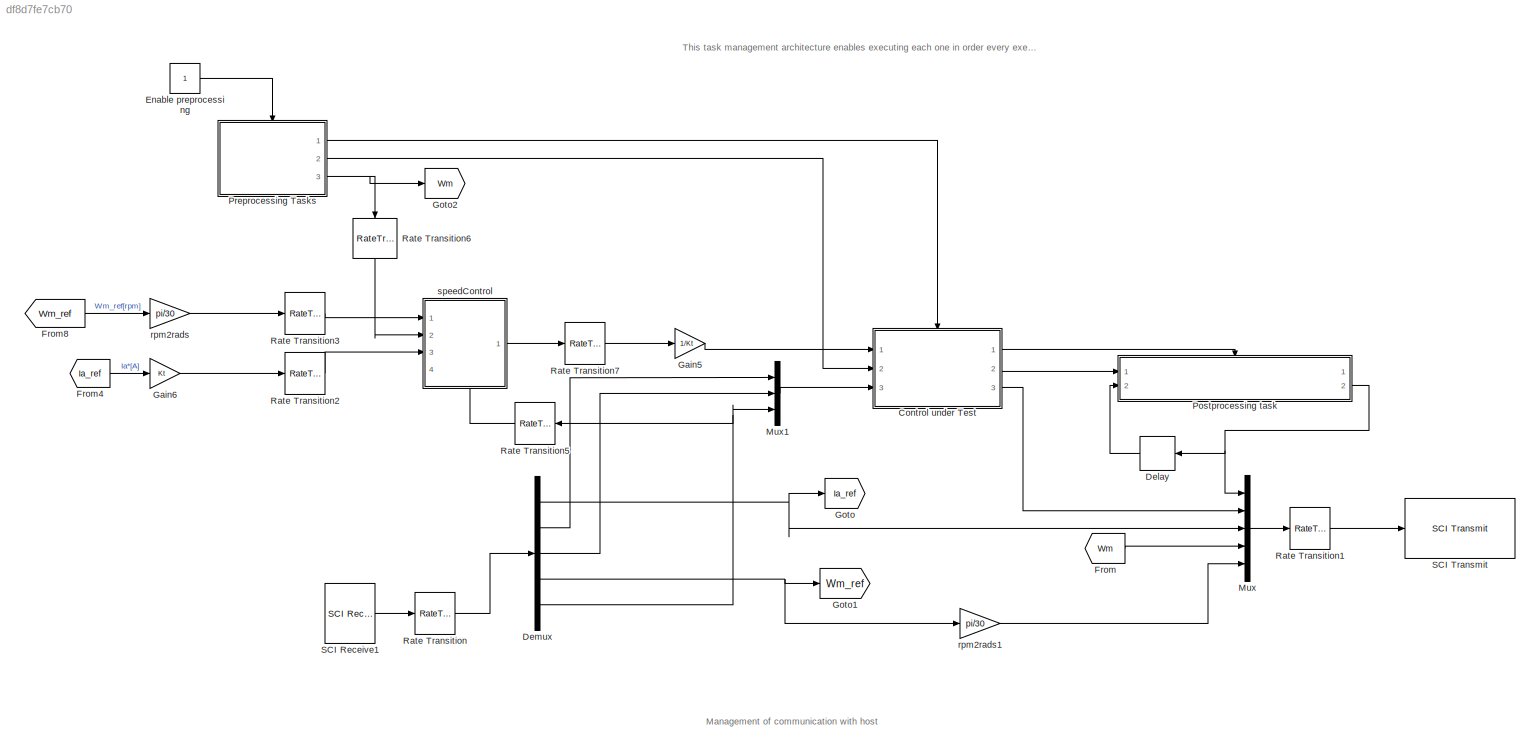
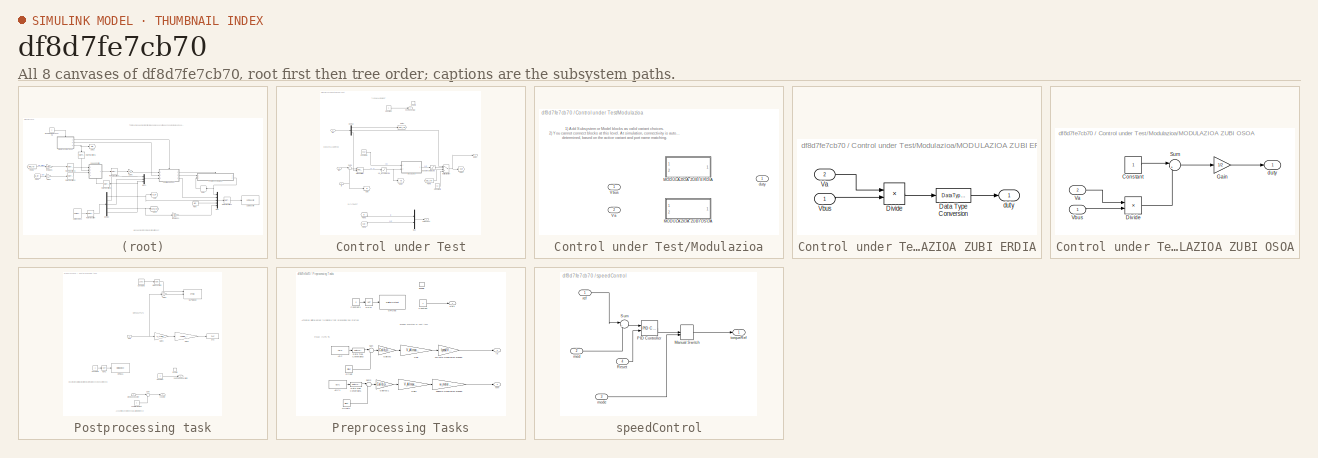
[diagram: thumbnail index - all 8 canvases of the model, root first then tree order]
MODEL slx_df8d7fe7cb70
KIND model
CONFIG AbsTol = auto
CONFIG EnableMultiTasking = on
CONFIG FixedStep = Ts
CONFIG MaxStep = auto
CONFIG MinStep = auto
CONFIG RelTol = 1e-3
CONFIG SampleTimeConstraint = Unconstrained
CONFIG SolverName = FixedStepAuto
CONFIG StartTime = 0.0
CONFIG StopTime = Inf
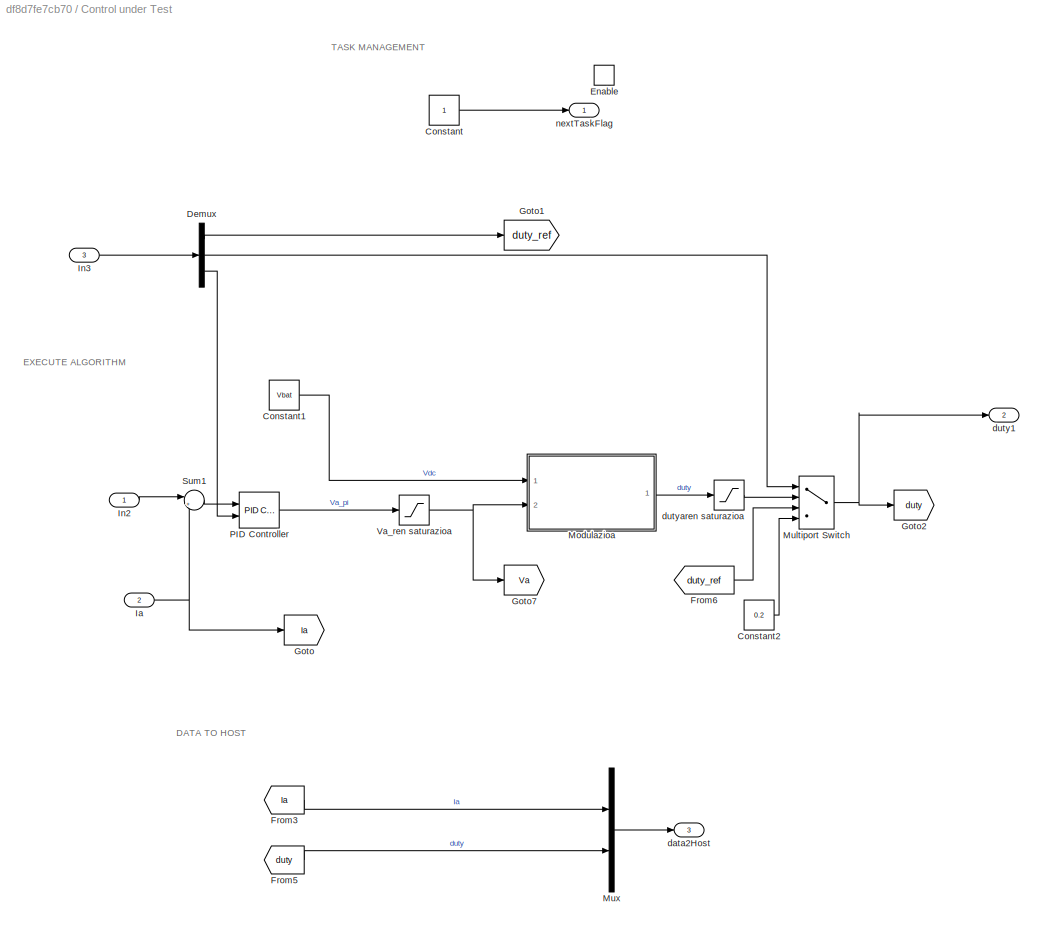
BLOCK [SubSystem] Control under Test
  Ports = [3, 3, 1]
  RequestExecContextInheritance = off
  TreatAsAtomicUnit = on
BLOCK [Constant] Control under Test/Constant
BLOCK [Constant] Control under Test/Constant1
  OutDataTypeStr = single
  Value = Vbat
BLOCK [Constant] Control under Test/Constant2
  OutDataTypeStr = single
  SampleTime = 200e-6
  Value = 0.2
BLOCK [Demux] Control under Test/Demux
  Outputs = 3
  Ports = [1, 3]
BLOCK [EnablePort] Control under Test/Enable
  Ports = []
BLOCK [From] Control under Test/From3
  GotoTag = Ia
BLOCK [From] Control under Test/From5
  GotoTag = duty
BLOCK [From] Control under Test/From6
  GotoTag = duty_ref
BLOCK [Goto] Control under Test/Goto
  GotoTag = Ia
BLOCK [Goto] Control under Test/Goto1
  GotoTag = duty_ref
BLOCK [Goto] Control under Test/Goto2
  GotoTag = duty
BLOCK [Goto] Control under Test/Goto7
  GotoTag = Va
BLOCK [Inport] Control under Test/Ia
  Port = 2
BLOCK [Inport] Control under Test/In2
BLOCK [Inport] Control under Test/In3
  Port = 3
BLOCK [SubSystem] Control under Test/Modulazioa
  LabelModeActiveChoice = MODULAZIOA_ZUBI_ERDIA
  Ports = [2, 1]
  RequestExecContextInheritance = off
  Variant = on
  VariantControlMode = label
BLOCK [SubSystem] Control under Test/Modulazioa/MODULAZIOA ZUBI ERDIA
  Ports = [2, 1]
  RequestExecContextInheritance = off
  VariantControl = MODULAZIOA_ZUBI_ERDIA
BLOCK [DataTypeConversion] Control under Test/Modulazioa/MODULAZIOA ZUBI ERDIA/Data Type Conversion
  OutDataTypeStr = single
  RndMeth = Floor
  SaturateOnIntegerOverflow = off
BLOCK [Product] Control under Test/Modulazioa/MODULAZIOA ZUBI ERDIA/Divide
  Inputs = */
  Ports = [2, 1]
BLOCK [Inport] Control under Test/Modulazioa/MODULAZIOA ZUBI ERDIA/Va
  Port = 2
BLOCK [Inport] Control under Test/Modulazioa/MODULAZIOA ZUBI ERDIA/Vbus
BLOCK [Outport] Control under Test/Modulazioa/MODULAZIOA ZUBI ERDIA/duty 
BLOCK [SubSystem] Control under Test/Modulazioa/MODULAZIOA ZUBI OSOA
  Ports = [2, 1]
  RequestExecContextInheritance = off
  VariantControl = MODULAZIOA_ZUBI_OSOA
BLOCK [Constant] Control under Test/Modulazioa/MODULAZIOA ZUBI OSOA/Constant
BLOCK [Product] Control under Test/Modulazioa/MODULAZIOA ZUBI OSOA/Divide
  Inputs = */
  Ports = [2, 1]
BLOCK [Gain] Control under Test/Modulazioa/MODULAZIOA ZUBI OSOA/Gain
  Gain = 1/2
BLOCK [Sum] Control under Test/Modulazioa/MODULAZIOA ZUBI OSOA/Sum
  Inputs = |++
  Ports = [2, 1]
BLOCK [Inport] Control under Test/Modulazioa/MODULAZIOA ZUBI OSOA/Va
  Port = 2
BLOCK [Inport] Control under Test/Modulazioa/MODULAZIOA ZUBI OSOA/Vbus
BLOCK [Outport] Control under Test/Modulazioa/MODULAZIOA ZUBI OSOA/duty 
BLOCK [Inport] Control under Test/Modulazioa/Va
  Port = 2
BLOCK [Inport] Control under Test/Modulazioa/Vbus
BLOCK [Outport] Control under Test/Modulazioa/duty 
BLOCK [MultiPortSwitch] Control under Test/Multiport Switch
  InputSameDT = off
  Ports = [4, 1]
  SaturateOnIntegerOverflow = off
BLOCK [Mux] Control under Test/Mux
  DisplayOption = bar
  Inputs = 2
  Ports = [2, 1]
BLOCK [Reference] Control under Test/PID Controller  REF=slpidlib/PID Controller
  Ports = [2, 1]
  SourceBlock = slpidlib/PID Controller
  SourceProductBaseCode = SL
  SourceType = PID 1dof
BLOCK [Sum] Control under Test/Sum1
  Inputs = |+-
  Ports = [2, 1]
BLOCK [Saturate] Control under Test/Va_ren saturazioa
  LowerLimit = 0
  UpperLimit = Vnom
BLOCK [Outport] Control under Test/data2Host
  Port = 3
BLOCK [Outport] Control under Test/duty1
  Port = 2
BLOCK [Saturate] Control under Test/dutyaren saturazioa
  LowerLimit = 0
  UpperLimit = 1
BLOCK [Outport] Control under Test/nextTaskFlag
BLOCK [Delay] Delay
  DelayLength = 1
  InputPortMap = u0
  NameLocation = top
  Ports = [1, 1]
BLOCK [Demux] Demux
  Outputs = 5
  Ports = [1, 5]
BLOCK [Constant] Enable preprocessing
BLOCK [From] From
  GotoTag = Wm
BLOCK [From] From4
  GotoTag = Ia_ref
BLOCK [From] From8
  GotoTag = Wm_ref
BLOCK [Gain] Gain5
  Gain = 1/Kt
BLOCK [Gain] Gain6
  Gain = Kt
BLOCK [Goto] Goto
  GotoTag = Ia_ref
BLOCK [Goto] Goto1
  GotoTag = Wm_ref
BLOCK [Goto] Goto2
  GotoTag = Wm
BLOCK [Mux] Mux
  DisplayOption = bar
  Inputs = 5
  Ports = [5, 1]
BLOCK [Mux] Mux1
  DisplayOption = bar
  Inputs = 3
  Ports = [3, 1]
BLOCK [SubSystem] Postprocessing task
  Ports = [2, 2, 1]
  RequestExecContextInheritance = off
  TreatAsAtomicUnit = on
BLOCK [Constant] Postprocessing task/Constant
BLOCK [Constant] Postprocessing task/Constant2
BLOCK [Constant] Postprocessing task/Constant3
  OutDataTypeStr = single
  SampleTime = 200e-6
  Value = 10e3
BLOCK [Reference] Postprocessing task/DAC  REF=c2837xDlib/DAC
  Ports = [1]
  SourceBlock = c2837xDlib/DAC
  SourceProductBaseCode = TIC2000
  SourceType = codertarget.tic2000.blocks.DACWrite
BLOCK [EnablePort] Postprocessing task/Enable
  Ports = []
BLOCK [Reference] Postprocessing task/GPIO66 1  REF=c2837xDlib/Digital Output
  Ports = [1]
  SourceBlock = c2837xDlib/Digital Output
  SourceProductBaseCode = TIC2000
  SourceType = F2837x GPIO Digital Output
  UserDataPersistent = on
BLOCK [Gain] Postprocessing task/Gain1
  Gain = 100
BLOCK [Gain] Postprocessing task/Gain2
  Gain = Analog_max/V_AImax
BLOCK [Gain] Postprocessing task/Gain3
  Gain = V_AImax
BLOCK [Math] Postprocessing task/Math Function
  Operator = reciprocal
  Ports = [1, 1]
BLOCK [Logic] Postprocessing task/NOT2
  AllPortsSameDT = off
  IconShape = distinctive
  Operator = NOT
  OutDataTypeStr = boolean
  Ports = [1, 1]
BLOCK [Sum] Postprocessing task/Sum
  Inputs = |++
  Ports = [2, 1]
BLOCK [Reference] Postprocessing task/WA PWM duty  REF=c2802xlib/ePWM
  Ports = [3]
  SourceBlock = c2802xlib/ePWM
  SourceProductBaseCode = TIC2000
  SourceType = ePWM Type 1-4
  UserDataPersistent = on
BLOCK [Outport] Postprocessing task/counter
  Port = 2
BLOCK [Constant] Postprocessing task/couterIncrement
  OutDataTypeStr = single
BLOCK [Inport] Postprocessing task/duty
BLOCK [Outport] Postprocessing task/nextTaskExecution
BLOCK [Inport] Postprocessing task/previousCounter
  Port = 2
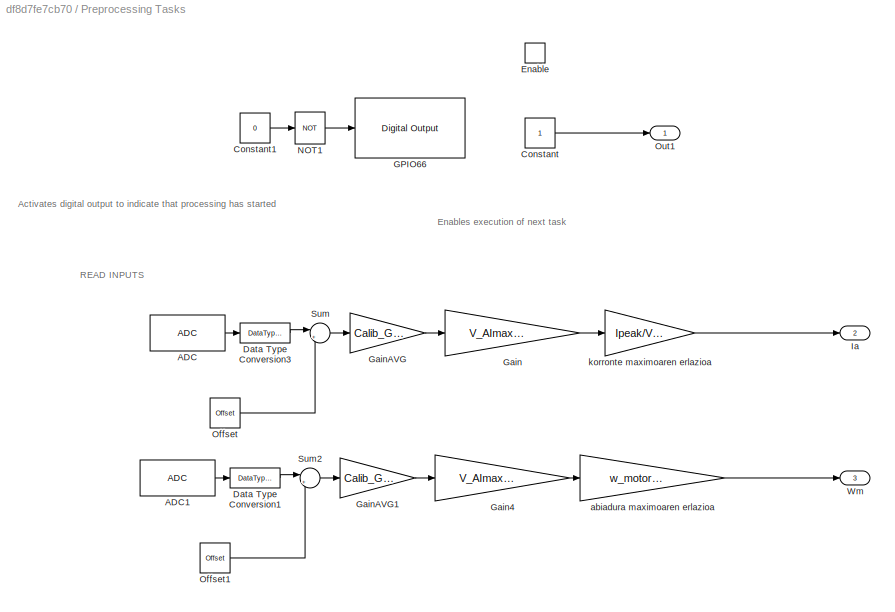
BLOCK [SubSystem] Preprocessing Tasks
  Ports = [0, 3, 1]
  RequestExecContextInheritance = off
  TreatAsAtomicUnit = on
BLOCK [Reference] Preprocessing Tasks/ADC  REF=c2802xlib/ADC
  Ports = [0, 1]
  SourceBlock = c2802xlib/ADC
  SourceProductBaseCode = TIC2000
  SourceType = ADC Type 3-5
  UserDataPersistent = on
BLOCK [Reference] Preprocessing Tasks/ADC1  REF=c2802xlib/ADC
  Ports = [0, 1]
  SourceBlock = c2802xlib/ADC
  SourceProductBaseCode = TIC2000
  SourceType = ADC Type 3-5
  UserDataPersistent = on
BLOCK [Constant] Preprocessing Tasks/Constant
BLOCK [Constant] Preprocessing Tasks/Constant1
  Value = 0
BLOCK [DataTypeConversion] Preprocessing Tasks/Data Type Conversion1
  OutDataTypeStr = single
  RndMeth = Floor
  SaturateOnIntegerOverflow = off
BLOCK [DataTypeConversion] Preprocessing Tasks/Data Type Conversion3
  OutDataTypeStr = single
  RndMeth = Floor
  SaturateOnIntegerOverflow = off
BLOCK [EnablePort] Preprocessing Tasks/Enable
  Ports = []
BLOCK [Reference] Preprocessing Tasks/GPIO66   REF=c2837xDlib/Digital Output
  Ports = [1]
  SourceBlock = c2837xDlib/Digital Output
  SourceProductBaseCode = TIC2000
  SourceType = F2837x GPIO Digital Output
  UserDataPersistent = on
BLOCK [Gain] Preprocessing Tasks/Gain
  Gain = V_AImax/Analog_max
BLOCK [Gain] Preprocessing Tasks/Gain4
  Gain = V_AImax/Analog_max
BLOCK [Gain] Preprocessing Tasks/GainAVG
  Gain = Calib_Gain
  OutDataTypeStr = single
BLOCK [Gain] Preprocessing Tasks/GainAVG1
  Gain = Calib_Gain
  OutDataTypeStr = single
BLOCK [Outport] Preprocessing Tasks/Ia
  Port = 2
BLOCK [Logic] Preprocessing Tasks/NOT1
  AllPortsSameDT = off
  IconShape = distinctive
  Operator = NOT
  OutDataTypeStr = boolean
  Ports = [1, 1]
BLOCK [Constant] Preprocessing Tasks/Offset
  OutDataTypeStr = single
  Value = Offset
BLOCK [Constant] Preprocessing Tasks/Offset1
  OutDataTypeStr = single
  Value = Offset
BLOCK [Outport] Preprocessing Tasks/Out1
BLOCK [Sum] Preprocessing Tasks/Sum
  Inputs = |+-
  Ports = [2, 1]
BLOCK [Sum] Preprocessing Tasks/Sum2
  Inputs = |+-
  Ports = [2, 1]
BLOCK [Outport] Preprocessing Tasks/Wm
  Port = 3
BLOCK [Gain] Preprocessing Tasks/abiadura maximoaren erlazioa
  Gain = w_motor_max/V_AImax
  NameLocation = top
BLOCK [Gain] Preprocessing Tasks/korronte maximoaren erlazioa
  Gain = Ipeak/V_AImax
  NameLocation = top
BLOCK [RateTransition] Rate Transition
  OutPortSampleTime = Ts
BLOCK [RateTransition] Rate Transition1
  OutPortSampleTime = 1e-3
BLOCK [RateTransition] Rate Transition2
  OutPortSampleTime = Ts*10
BLOCK [RateTransition] Rate Transition3
  OutPortSampleTime = Ts*10
BLOCK [RateTransition] Rate Transition5
  NameLocation = top
  OutPortSampleTime = Ts*10
BLOCK [RateTransition] Rate Transition6
  NameLocation = left
  OutPortSampleTime = Ts*10
BLOCK [RateTransition] Rate Transition7
  OutPortSampleTime = Ts
BLOCK [Reference] SCI Receive1  REF=c280xlib/SCI Receive
  Ports = [0, 1]
  SourceBlock = c280xlib/SCI Receive
  SourceProductBaseCode = TIC2000
  SourceType = C28x SCI Receive
BLOCK [Reference] SCI Transmit  REF=c280xlib/SCI Transmit
  Ports = [1]
  SourceBlock = c280xlib/SCI Transmit
  SourceProductBaseCode = TIC2000
  SourceType = C28x SCI Transmit
BLOCK [Gain] rpm2rads
  Gain = pi/30
BLOCK [Gain] rpm2rads1
  Gain = pi/30
BLOCK [SubSystem] speedControl
  PortSchema = {"entries":[{"content":{"sides":[{"content":{"connectorIds":["In1","In2","In3"]},"type":"ConnectorPlacement.EquallySpacedRectSide","uuid":"717e16ee-b0d7-408d-ae9c-739de9edb354"},{"content":{"connectorIds":["Out1"],"side":"RIGHT"},"type":"ConnectorPlacement.EquallySpacedRectSide","uuid":"4d51b045-d1f8-4970-b864-a989cb97e64e"},{"content":{"connectorIds":[],"side":"TOP"},"type":"ConnectorPlacement.Eq...<+401ch>
  Ports = [4, 1]
  RequestExecContextInheritance = off
BLOCK [ManualSwitch] speedControl/Manual Switch
BLOCK [Reference] speedControl/PID Controller  REF=slpidlib/PID Controller
  Ports = [2, 1]
  SourceBlock = slpidlib/PID Controller
  SourceProductBaseCode = SL
  SourceType = PID 1dof
BLOCK [Inport] speedControl/Reset
  Port = 4
BLOCK [Sum] speedControl/Sum
  Inputs = |+-
  Ports = [2, 1]
BLOCK [Inport] speedControl/med
  Port = 2
BLOCK [Inport] speedControl/mode
  Port = 3
BLOCK [Inport] speedControl/ref
BLOCK [Outport] speedControl/torqueRef
ANNOTATION (root): Management of communication with host
ANNOTATION (root): This task management architecture enables executing each one in order every execution step defined in the model base simulation step.
ANNOTATION Control under Test: DATA TO HOST
ANNOTATION Control under Test: EXECUTE ALGORITHM
ANNOTATION Control under Test: TASK MANAGEMENT
ANNOTATION Control under Test/Modulazioa: 1) Add Subsystem or Model blocks as valid variant choices. 2) You cannot connect blocks at this level. At simulation, connectivity is automatically determined, based on the active variant and port name matching.
ANNOTATION Postprocessing task: A counter is send to the host as a time reference
ANNOTATION Postprocessing task: Deactivates digital output to indicate that processing has finished
ANNOTATION Postprocessing task: WRITE OUTPUTS
ANNOTATION Preprocessing Tasks: Activates digital output to indicate that processing has started
ANNOTATION Preprocessing Tasks: Enables execution of next task
ANNOTATION Preprocessing Tasks: READ INPUTS
LINE Control under Test/Constant1:1 -> Control under Test/Modulazioa:1
LINE Control under Test/Constant2:1 -> Control under Test/Multiport Switch:4
LINE Control under Test/Constant:1 -> Control under Test/nextTaskFlag:1
LINE Control under Test/Demux:1 -> Control under Test/Goto1:1
LINE Control under Test/Demux:2 -> Control under Test/Multiport Switch:1
LINE Control under Test/Demux:3 -> Control under Test/PID Controller:2
LINE Control under Test/From3:1 -> Control under Test/Mux:1
LINE Control under Test/From5:1 -> Control under Test/Mux:2
LINE Control under Test/From6:1 -> Control under Test/Multiport Switch:3
NET Control under Test/Ia:1 -> Control under Test/Goto:1, Control under Test/Sum1:2
LINE Control under Test/In2:1 -> Control under Test/Sum1:1
LINE Control under Test/In3:1 -> Control under Test/Demux:1
LINE Control under Test/Modulazioa/MODULAZIOA ZUBI ERDIA/Data Type Conversion:1 -> Control under Test/Modulazioa/MODULAZIOA ZUBI ERDIA/duty :1
LINE Control under Test/Modulazioa/MODULAZIOA ZUBI ERDIA/Divide:1 -> Control under Test/Modulazioa/MODULAZIOA ZUBI ERDIA/Data Type Conversion:1
LINE Control under Test/Modulazioa/MODULAZIOA ZUBI ERDIA/Va:1 -> Control under Test/Modulazioa/MODULAZIOA ZUBI ERDIA/Divide:1
LINE Control under Test/Modulazioa/MODULAZIOA ZUBI ERDIA/Vbus:1 -> Control under Test/Modulazioa/MODULAZIOA ZUBI ERDIA/Divide:2
LINE Control under Test/Modulazioa/MODULAZIOA ZUBI OSOA/Constant:1 -> Control under Test/Modulazioa/MODULAZIOA ZUBI OSOA/Sum:1
LINE Control under Test/Modulazioa/MODULAZIOA ZUBI OSOA/Divide:1 -> Control under Test/Modulazioa/MODULAZIOA ZUBI OSOA/Sum:2
LINE Control under Test/Modulazioa/MODULAZIOA ZUBI OSOA/Gain:1 -> Control under Test/Modulazioa/MODULAZIOA ZUBI OSOA/duty :1
LINE Control under Test/Modulazioa/MODULAZIOA ZUBI OSOA/Sum:1 -> Control under Test/Modulazioa/MODULAZIOA ZUBI OSOA/Gain:1
LINE Control under Test/Modulazioa/MODULAZIOA ZUBI OSOA/Va:1 -> Control under Test/Modulazioa/MODULAZIOA ZUBI OSOA/Divide:1
LINE Control under Test/Modulazioa/MODULAZIOA ZUBI OSOA/Vbus:1 -> Control under Test/Modulazioa/MODULAZIOA ZUBI OSOA/Divide:2
LINE Control under Test/Modulazioa:1 -> Control under Test/dutyaren saturazioa:1
NET Control under Test/Multiport Switch:1 -> Control under Test/Goto2:1, Control under Test/duty1:1
LINE Control under Test/Mux:1 -> Control under Test/data2Host:1
LINE Control under Test/PID Controller:1 -> Control under Test/Va_ren saturazioa:1
LINE Control under Test/Sum1:1 -> Control under Test/PID Controller:1
NET Control under Test/Va_ren saturazioa:1 -> Control under Test/Goto7:1, Control under Test/Modulazioa:2
LINE Control under Test/dutyaren saturazioa:1 -> Control under Test/Multiport Switch:2
LINE Control under Test:1 -> Postprocessing task:enable
LINE Control under Test:2 -> Postprocessing task:1
LINE Control under Test:3 -> Mux:2
LINE Delay:1 -> Postprocessing task:2
NET Demux:1 -> Goto:1, Mux:3
LINE Demux:2 -> Mux1:1
LINE Demux:3 -> Mux1:2
NET Demux:4 -> Goto1:1, rpm2rads1:1
NET Demux:5 -> Mux1:3, Rate Transition5:1
LINE Enable preprocessing:1 -> Preprocessing Tasks:enable
LINE From4:1 -> Gain6:1
LINE From8:1 -> rpm2rads:1
LINE From:1 -> Mux:4
LINE Gain5:1 -> Control under Test:1
LINE Gain6:1 -> Rate Transition2:1
LINE Mux1:1 -> Control under Test:3
LINE Mux:1 -> Rate Transition1:1
LINE Postprocessing task/Constant2:1 -> Postprocessing task/NOT2:1
LINE Postprocessing task/Constant3:1 -> Postprocessing task/Math Function:1
LINE Postprocessing task/Constant:1 -> Postprocessing task/nextTaskExecution:1
LINE Postprocessing task/Gain1:1 -> Postprocessing task/WA PWM duty:2
LINE Postprocessing task/Gain2:1 -> Postprocessing task/DAC:1
LINE Postprocessing task/Gain3:1 -> Postprocessing task/Gain2:1
LINE Postprocessing task/Math Function:1 -> Postprocessing task/WA PWM duty:1
LINE Postprocessing task/NOT2:1 -> Postprocessing task/GPIO66 1:1
LINE Postprocessing task/Sum:1 -> Postprocessing task/counter:1
LINE Postprocessing task/couterIncrement:1 -> Postprocessing task/Sum:2
NET Postprocessing task/duty:1 -> Postprocessing task/Gain1:1, Postprocessing task/Gain3:1
LINE Postprocessing task/previousCounter:1 -> Postprocessing task/Sum:1
NET Postprocessing task:2 -> Delay:1, Mux:1
LINE Preprocessing Tasks/ADC1:1 -> Preprocessing Tasks/Data Type Conversion1:1
LINE Preprocessing Tasks/ADC:1 -> Preprocessing Tasks/Data Type Conversion3:1
LINE Preprocessing Tasks/Constant1:1 -> Preprocessing Tasks/NOT1:1
LINE Preprocessing Tasks/Constant:1 -> Preprocessing Tasks/Out1:1
LINE Preprocessing Tasks/Data Type Conversion1:1 -> Preprocessing Tasks/Sum2:1
LINE Preprocessing Tasks/Data Type Conversion3:1 -> Preprocessing Tasks/Sum:1
LINE Preprocessing Tasks/Gain4:1 -> Preprocessing Tasks/abiadura maximoaren erlazioa:1
LINE Preprocessing Tasks/Gain:1 -> Preprocessing Tasks/korronte maximoaren erlazioa:1
LINE Preprocessing Tasks/GainAVG1:1 -> Preprocessing Tasks/Gain4:1
LINE Preprocessing Tasks/GainAVG:1 -> Preprocessing Tasks/Gain:1
LINE Preprocessing Tasks/NOT1:1 -> Preprocessing Tasks/GPIO66 :1
LINE Preprocessing Tasks/Offset1:1 -> Preprocessing Tasks/Sum2:2
LINE Preprocessing Tasks/Offset:1 -> Preprocessing Tasks/Sum:2
LINE Preprocessing Tasks/Sum2:1 -> Preprocessing Tasks/GainAVG1:1
LINE Preprocessing Tasks/Sum:1 -> Preprocessing Tasks/GainAVG:1
LINE Preprocessing Tasks/abiadura maximoaren erlazioa:1 -> Preprocessing Tasks/Wm:1
LINE Preprocessing Tasks/korronte maximoaren erlazioa:1 -> Preprocessing Tasks/Ia:1
LINE Preprocessing Tasks:1 -> Control under Test:enable
LINE Preprocessing Tasks:2 -> Control under Test:2
NET Preprocessing Tasks:3 -> Goto2:1, Rate Transition6:1
LINE Rate Transition1:1 -> SCI Transmit:1
LINE Rate Transition2:1 -> speedControl:3
LINE Rate Transition3:1 -> speedControl:1
LINE Rate Transition5:1 -> speedControl:4
LINE Rate Transition6:1 -> speedControl:2
LINE Rate Transition7:1 -> Gain5:1
LINE Rate Transition:1 -> Demux:1
LINE SCI Receive1:1 -> Rate Transition:1
LINE rpm2rads1:1 -> Mux:5
LINE rpm2rads:1 -> Rate Transition3:1
LINE speedControl/Manual Switch:1 -> speedControl/torqueRef:1
LINE speedControl/PID Controller:1 -> speedControl/Manual Switch:1
LINE speedControl/Reset:1 -> speedControl/PID Controller:2
LINE speedControl/Sum:1 -> speedControl/PID Controller:1
LINE speedControl/med:1 -> speedControl/Sum:2
LINE speedControl/mode:1 -> speedControl/Manual Switch:2
LINE speedControl/ref:1 -> speedControl/Sum:1
LINE speedControl:1 -> Rate Transition7:1
note: NET lines group one-source signal fan-out (src -> all destinations, sorted); 1:1 wires keep LINE
CHART Test Assessment Block states=3 transitions=10
  STATE_LABEL 'Run\n\n'
  STATE_LABEL 'step_1_1'
  STATE_LABEL 'step_1_2'
  STATE_LABEL '[t < 5\n]'
  STATE_LABEL '[~in(Run.step_1_1)]'
  STATE_LABEL '[~in(Run.step_1_2)]'
  STATE_LABEL 'step_1_1'
  STATE_LABEL 'step_1_2'
CHART Test Sequence states=1 transitions=1
  STATE_LABEL 'Run\n\n%% Initialize data outputs.\nref = 0;\nmed = 0;\nmode = 0;'
